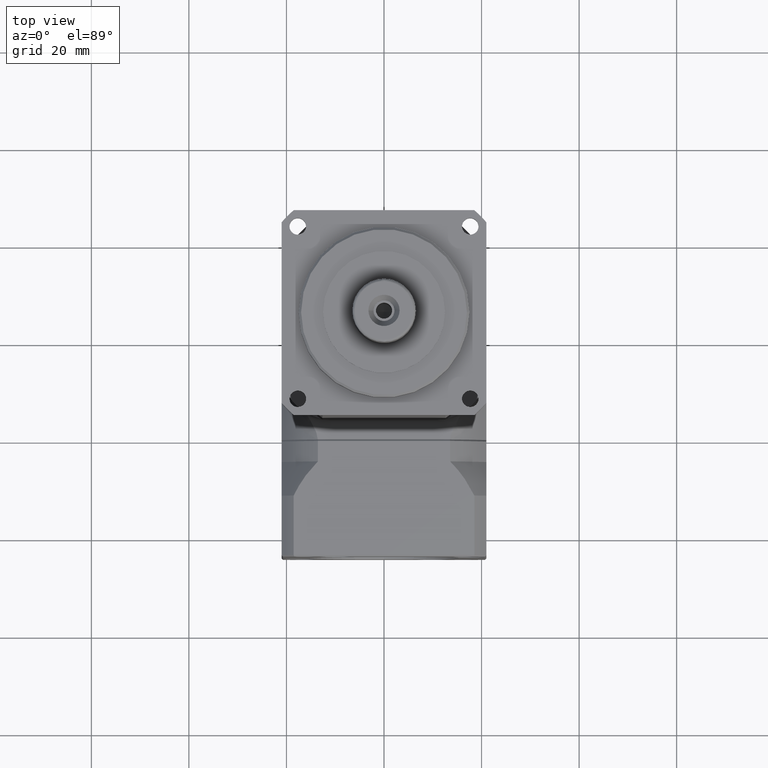
[diagram: clean part render]
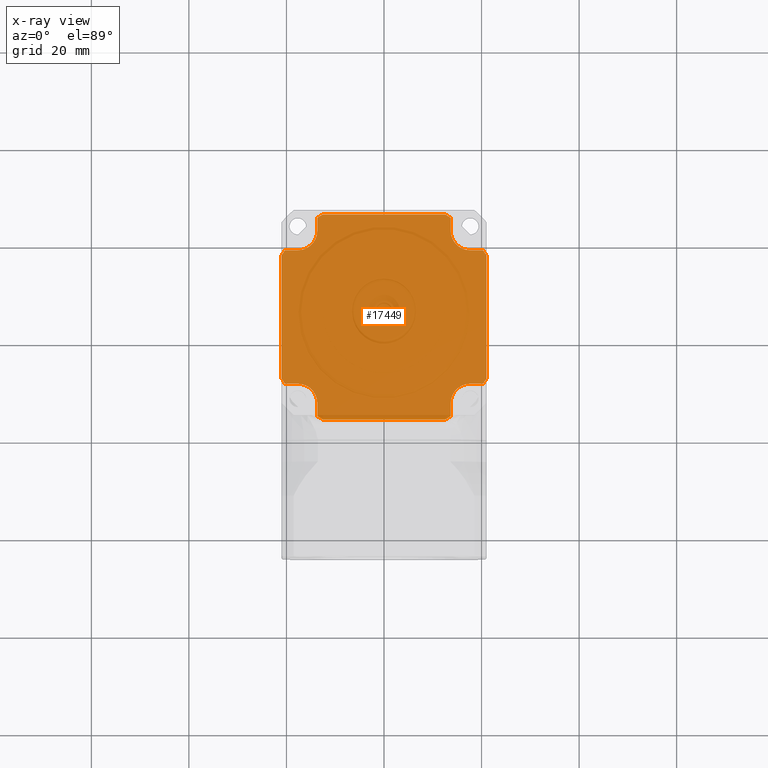
[diagram: x-ray — body ghosted, one internal face saturated and labeled with its STEP entity id]
A machine part, top view, then the same camera in x-ray: the body is ghosted and one INTERNAL B-rep face — a face not visible from any outside direction — is saturated and labeled: STEP entity #17449.
In plain terms, the highlighted planar face has unit normal (0, 0, 1).
Its self-contained STEP definition (entity closure, byte-faithful):
#29 = EDGE_CURVE ( 'NONE', #11926, #10925, #13843, .T. ) ;
#72 = DIRECTION ( 'NONE',  ( -1.000000000000000000, -0.0000000000000000000, 0.0000000000000000000 ) ) ;
#100 = LINE ( 'NONE', #5847, #5934 ) ;
#269 = ORIENTED_EDGE ( 'NONE', *, *, #16492, .F. ) ;
#301 = EDGE_CURVE ( 'NONE', #3628, #2032, #17816, .T. ) ;
#525 = ORIENTED_EDGE ( 'NONE', *, *, #17121, .F. ) ;
#535 = CARTESIAN_POINT ( 'NONE',  ( 3653.603875950607700, 1416.338132475112200, 0.0000000000000000000 ) ) ;
#545 = EDGE_CURVE ( 'NONE', #15669, #10953, #6582, .T. ) ;
#655 = DIRECTION ( 'NONE',  ( -1.000000000000000000, -0.0000000000000000000, 0.0000000000000000000 ) ) ;
#688 = EDGE_CURVE ( 'NONE', #11619, #18233, #13596, .T. ) ;
#759 = CARTESIAN_POINT ( 'NONE',  ( 3653.603875950607700, 1416.338132475112200, 0.0000000000000000000 ) ) ;
#845 = EDGE_CURVE ( 'NONE', #2032, #15438, #5630, .T. ) ;
#924 = DIRECTION ( 'NONE',  ( -1.000000000000000000, 0.0000000000000000000, 0.0000000000000000000 ) ) ;
#955 = EDGE_CURVE ( 'NONE', #5896, #11633, #7251, .T. ) ;
#964 = ORIENTED_EDGE ( 'NONE', *, *, #9137, .F. ) ;
#994 = VERTEX_POINT ( 'NONE', #3820 ) ;
#1012 = ORIENTED_EDGE ( 'NONE', *, *, #955, .F. ) ;
#1124 = VERTEX_POINT ( 'NONE', #11743 ) ;
#1241 = CARTESIAN_POINT ( 'NONE',  ( 3667.281545278764500, 1416.338132475112200, 0.0000000000000000000 ) ) ;
#1451 = DIRECTION ( 'NONE',  ( 1.000000000000000000, 0.0000000000000000000, -0.0000000000000000000 ) ) ;
#1654 = VECTOR ( 'NONE', #3000, 1000.000000000000000 ) ;
#1740 = DIRECTION ( 'NONE',  ( -1.000000000000000000, 7.703588084212449800E-013, 0.0000000000000000000 ) ) ;
#1839 = CARTESIAN_POINT ( 'NONE',  ( 3633.277258396824000, 1402.660463054807500, 0.0000000000000000000 ) ) ;
#1892 = AXIS2_PLACEMENT_3D ( 'NONE', #759, #11227, #2238 ) ;
#1955 = EDGE_LOOP ( 'NONE', ( #16717, #19314, #5750, #13756, #9875, #4880, #9709, #269, #16561, #14162, #13967, #10852, #8988, #15014, #1012, #17714, #18382, #964, #10274, #12080, #16409, #525, #9691, #15710 ) ) ;
#1991 = VERTEX_POINT ( 'NONE', #16380 ) ;
#2032 = VERTEX_POINT ( 'NONE', #4331 ) ;
#2138 = LINE ( 'NONE', #4818, #11074 ) ;
#2238 = DIRECTION ( 'NONE',  ( -1.000000000000000000, -1.268826308684776500E-013, 0.0000000000000000000 ) ) ;
#2255 = CARTESIAN_POINT ( 'NONE',  ( 3632.603875364589800, 1403.718703116533600, 0.0000000000000000000 ) ) ;
#2363 = FACE_OUTER_BOUND ( 'NONE', #1955, .T. ) ;
#2431 = VERTEX_POINT ( 'NONE', #6875 ) ;
#2825 = LINE ( 'NONE', #3061, #1654 ) ;
#2937 = VERTEX_POINT ( 'NONE', #2255 ) ;
#2972 = AXIS2_PLACEMENT_3D ( 'NONE', #13386, #13454, #14826 ) ;
#3000 = DIRECTION ( 'NONE',  ( -1.000000000000000000, -0.0000000000000000000, 0.0000000000000000000 ) ) ;
#3041 = DIRECTION ( 'NONE',  ( 1.000000000000000000, 0.0000000000000000000, -0.0000000000000000000 ) ) ;
#3061 = CARTESIAN_POINT ( 'NONE',  ( 3653.603875950607700, 1437.338132993318100, 0.0000000000000000000 ) ) ;
#3063 = AXIS2_PLACEMENT_3D ( 'NONE', #15720, #9840, #3724 ) ;
#3115 = CARTESIAN_POINT ( 'NONE',  ( 3653.603875950607700, 1430.015802524130800, 0.0000000000000000000 ) ) ;
#3202 = VERTEX_POINT ( 'NONE', #6315 ) ;
#3451 = EDGE_CURVE ( 'NONE', #10953, #16059, #18216, .T. ) ;
#3628 = VERTEX_POINT ( 'NONE', #17874 ) ;
#3724 = DIRECTION ( 'NONE',  ( -1.000000000000000000, -4.169000777058308300E-013, 0.0000000000000000000 ) ) ;
#3772 = CARTESIAN_POINT ( 'NONE',  ( 3635.926205771974300, 1434.015802563878200, 0.0000000000000000000 ) ) ;
#3820 = CARTESIAN_POINT ( 'NONE',  ( 3667.281545270607700, 1396.011515617056400, 0.0000000000000000000 ) ) ;
#3857 = EDGE_CURVE ( 'NONE', #7575, #11619, #18651, .T. ) ;
#4319 = CIRCLE ( 'NONE', #1892, 24.50000009987762800 ) ;
#4331 = CARTESIAN_POINT ( 'NONE',  ( 3635.926205780749100, 1430.015802522639900, 0.0000000000000000000 ) ) ;
#4341 = CARTESIAN_POINT ( 'NONE',  ( 3653.603875950607700, 1416.338132475112200, 0.0000000000000000000 ) ) ;
#4413 = DIRECTION ( 'NONE',  ( 0.0000000000000000000, 0.0000000000000000000, 1.000000000000000000 ) ) ;
#4453 = CARTESIAN_POINT ( 'NONE',  ( 3639.926205809276800, 1396.011515646083100, 0.0000000000000000000 ) ) ;
#4471 = AXIS2_PLACEMENT_3D ( 'NONE', #8556, #5725, #8424 ) ;
#4631 = CARTESIAN_POINT ( 'NONE',  ( 3653.603875950607700, 1416.338132475112200, 0.0000000000000000000 ) ) ;
#4634 = CARTESIAN_POINT ( 'NONE',  ( 3671.281545320003300, 1434.015802565369500, 0.0000000000000000000 ) ) ;
#4690 = EDGE_CURVE ( 'NONE', #994, #14304, #6231, .T. ) ;
#4818 = CARTESIAN_POINT ( 'NONE',  ( 3653.603875950607700, 1395.338132565405900, 0.0000000000000000000 ) ) ;
#4880 = ORIENTED_EDGE ( 'NONE', *, *, #3451, .F. ) ;
#5291 = CARTESIAN_POINT ( 'NONE',  ( 3639.926205813211700, 1416.338132475112200, 0.0000000000000000000 ) ) ;
#5530 = CARTESIAN_POINT ( 'NONE',  ( 3635.926205768038500, 1398.660463013569600, 0.0000000000000000000 ) ) ;
#5580 = CIRCLE ( 'NONE', #16003, 24.50000076735126000 ) ;
#5630 = LINE ( 'NONE', #12363, #12656 ) ;
#5725 = DIRECTION ( 'NONE',  ( -0.0000000000000000000, -0.0000000000000000000, -1.000000000000000000 ) ) ;
#5750 = ORIENTED_EDGE ( 'NONE', *, *, #688, .F. ) ;
#5839 = CARTESIAN_POINT ( 'NONE',  ( 3674.603875742843700, 1428.957562478882700, 0.0000000000000000000 ) ) ;
#5847 = CARTESIAN_POINT ( 'NONE',  ( 3653.603875950607700, 1402.660463054807500, 0.0000000000000000000 ) ) ;
#5896 = VERTEX_POINT ( 'NONE', #8761 ) ;
#5934 = VECTOR ( 'NONE', #1451, 1000.000000000000000 ) ;
#5968 = EDGE_CURVE ( 'NONE', #2937, #14651, #16885, .T. ) ;
#6066 = EDGE_CURVE ( 'NONE', #15438, #2431, #14518, .T. ) ;
#6099 = CARTESIAN_POINT ( 'NONE',  ( 3639.926205813211700, 1436.664749931364200, 0.0000000000000000000 ) ) ;
#6194 = AXIS2_PLACEMENT_3D ( 'NONE', #12111, #7711, #1740 ) ;
#6231 = LINE ( 'NONE', #9005, #15831 ) ;
#6315 = CARTESIAN_POINT ( 'NONE',  ( 3666.223305211858100, 1437.338132993318100, 0.0000000000000000000 ) ) ;
#6582 = CIRCLE ( 'NONE', #2972, 24.49999978211980800 ) ;
#6633 = CARTESIAN_POINT ( 'NONE',  ( 3666.223305205286100, 1395.338132565405900, 0.0000000000000000000 ) ) ;
#6757 = CARTESIAN_POINT ( 'NONE',  ( 3667.281545278764500, 1434.015802563484600, 0.0000000000000000000 ) ) ;
#6875 = CARTESIAN_POINT ( 'NONE',  ( 3632.603875364589800, 1428.957562507174300, 0.0000000000000000000 ) ) ;
#7178 = VECTOR ( 'NONE', #14280, 1000.000000000000000 ) ;
#7203 = EDGE_CURVE ( 'NONE', #11633, #11926, #11454, .T. ) ;
#7208 = VECTOR ( 'NONE', #9426, 1000.000000000000000 ) ;
#7251 = CIRCLE ( 'NONE', #10387, 4.000000041238127600 ) ;
#7393 = VECTOR ( 'NONE', #8617, 1000.000000000000000 ) ;
#7563 = EDGE_CURVE ( 'NONE', #9448, #11979, #5580, .T. ) ;
#7575 = VERTEX_POINT ( 'NONE', #15080 ) ;
#7711 = DIRECTION ( 'NONE',  ( 0.0000000000000000000, 0.0000000000000000000, 1.000000000000000000 ) ) ;
#7732 = DIRECTION ( 'NONE',  ( 0.0000000000000000000, 0.0000000000000000000, 1.000000000000000000 ) ) ;
#7748 = CARTESIAN_POINT ( 'NONE',  ( 3674.603875742843700, 1403.718703088253100, 0.0000000000000000000 ) ) ;
#7778 = LINE ( 'NONE', #5291, #11728 ) ;
#7893 = EDGE_CURVE ( 'NONE', #18233, #1124, #9340, .T. ) ;
#8010 = AXIS2_PLACEMENT_3D ( 'NONE', #9126, #7732, #9193 ) ;
#8414 = CARTESIAN_POINT ( 'NONE',  ( 3639.926205809276800, 1398.660463022344400, 0.0000000000000000000 ) ) ;
#8424 = DIRECTION ( 'NONE',  ( -1.000000000000000000, 0.0000000000000000000, 0.0000000000000000000 ) ) ;
#8556 = CARTESIAN_POINT ( 'NONE',  ( 3671.281545311846000, 1398.660462985663600, 0.0000000000000000000 ) ) ;
#8617 = DIRECTION ( 'NONE',  ( 0.0000000000000000000, -1.000000000000000000, -0.0000000000000000000 ) ) ;
#8748 = EDGE_CURVE ( 'NONE', #14304, #1991, #10006, .T. ) ;
#8761 = CARTESIAN_POINT ( 'NONE',  ( 3635.926205776813700, 1402.660463054807500, 0.0000000000000000000 ) ) ;
#8806 = CARTESIAN_POINT ( 'NONE',  ( 3632.603875364589800, 1416.338132475112200, 0.0000000000000000000 ) ) ;
#8988 = ORIENTED_EDGE ( 'NONE', *, *, #29, .F. ) ;
#9005 = CARTESIAN_POINT ( 'NONE',  ( 3667.281545270607700, 1416.338132475112200, 0.0000000000000000000 ) ) ;
#9097 = CARTESIAN_POINT ( 'NONE',  ( 3633.277258400758500, 1430.015802522639900, 0.0000000000000000000 ) ) ;
#9103 = DIRECTION ( 'NONE',  ( 0.0000000000000000000, 0.0000000000000000000, 1.000000000000000000 ) ) ;
#9126 = CARTESIAN_POINT ( 'NONE',  ( 3653.603875950607700, 1416.338132475112200, 0.0000000000000000000 ) ) ;
#9137 = EDGE_CURVE ( 'NONE', #2431, #2937, #13735, .T. ) ;
#9193 = DIRECTION ( 'NONE',  ( -1.000000000000000000, 3.625217989330414800E-014, 0.0000000000000000000 ) ) ;
#9212 = DIRECTION ( 'NONE',  ( -0.0000000000000000000, 1.000000000000000000, 0.0000000000000000000 ) ) ;
#9340 = LINE ( 'NONE', #1241, #11669 ) ;
#9426 = DIRECTION ( 'NONE',  ( 0.0000000000000000000, -1.000000000000000000, -0.0000000000000000000 ) ) ;
#9448 = VERTEX_POINT ( 'NONE', #10972 ) ;
#9553 = CARTESIAN_POINT ( 'NONE',  ( 3673.930492683092800, 1402.660463026901700, 0.0000000000000000000 ) ) ;
#9569 = DIRECTION ( 'NONE',  ( -1.000000000000000000, 0.0000000000000000000, 0.0000000000000000000 ) ) ;
#9691 = ORIENTED_EDGE ( 'NONE', *, *, #7563, .F. ) ;
#9709 = ORIENTED_EDGE ( 'NONE', *, *, #545, .F. ) ;
#9747 = CARTESIAN_POINT ( 'NONE',  ( 3671.281545303876100, 1430.015802524130800, 0.0000000000000000000 ) ) ;
#9762 = DIRECTION ( 'NONE',  ( 0.0000000000000000000, -1.000000000000000000, -0.0000000000000000000 ) ) ;
#9840 = DIRECTION ( 'NONE',  ( 0.0000000000000000000, 0.0000000000000000000, 1.000000000000000000 ) ) ;
#9875 = ORIENTED_EDGE ( 'NONE', *, *, #14133, .F. ) ;
#9928 = DIRECTION ( 'NONE',  ( -0.0000000000000000000, -0.0000000000000000000, -1.000000000000000000 ) ) ;
#10006 = CIRCLE ( 'NONE', #4471, 4.000000041238127600 ) ;
#10081 = DIRECTION ( 'NONE',  ( 1.000000000000000000, 0.0000000000000000000, -0.0000000000000000000 ) ) ;
#10274 = ORIENTED_EDGE ( 'NONE', *, *, #6066, .F. ) ;
#10387 = AXIS2_PLACEMENT_3D ( 'NONE', #5530, #9928, #12790 ) ;
#10461 = PLANE ( 'NONE',  #15621 ) ;
#10852 = ORIENTED_EDGE ( 'NONE', *, *, #12979, .F. ) ;
#10916 = EDGE_CURVE ( 'NONE', #14651, #5896, #100, .T. ) ;
#10925 = VERTEX_POINT ( 'NONE', #17766 ) ;
#10953 = VERTEX_POINT ( 'NONE', #7748 ) ;
#10972 = CARTESIAN_POINT ( 'NONE',  ( 3640.984445859055500, 1437.338132993318100, 0.0000000000000000000 ) ) ;
#11074 = VECTOR ( 'NONE', #12161, 1000.000000000000000 ) ;
#11227 = DIRECTION ( 'NONE',  ( 0.0000000000000000000, 0.0000000000000000000, 1.000000000000000000 ) ) ;
#11454 = LINE ( 'NONE', #16880, #7208 ) ;
#11503 = LINE ( 'NONE', #17540, #14074 ) ;
#11619 = VERTEX_POINT ( 'NONE', #9747 ) ;
#11633 = VERTEX_POINT ( 'NONE', #8414 ) ;
#11668 = DIRECTION ( 'NONE',  ( -0.0000000000000000000, 1.000000000000000000, 0.0000000000000000000 ) ) ;
#11669 = VECTOR ( 'NONE', #11668, 1000.000000000000000 ) ;
#11728 = VECTOR ( 'NONE', #9762, 1000.000000000000000 ) ;
#11743 = CARTESIAN_POINT ( 'NONE',  ( 3667.281545278764500, 1436.664749960418500, 0.0000000000000000000 ) ) ;
#11926 = VERTEX_POINT ( 'NONE', #4453 ) ;
#11979 = VERTEX_POINT ( 'NONE', #6099 ) ;
#12026 = DIRECTION ( 'NONE',  ( 0.0000000000000000000, 0.0000000000000000000, 1.000000000000000000 ) ) ;
#12080 = ORIENTED_EDGE ( 'NONE', *, *, #845, .F. ) ;
#12111 = CARTESIAN_POINT ( 'NONE',  ( 3653.603875950607700, 1416.338132475112200, 0.0000000000000000000 ) ) ;
#12146 = AXIS2_PLACEMENT_3D ( 'NONE', #535, #17017, #9569 ) ;
#12161 = DIRECTION ( 'NONE',  ( 1.000000000000000000, 0.0000000000000000000, -0.0000000000000000000 ) ) ;
#12218 = VERTEX_POINT ( 'NONE', #6633 ) ;
#12304 = CARTESIAN_POINT ( 'NONE',  ( 3653.603875950607700, 1416.338132475112200, 0.0000000000000000000 ) ) ;
#12363 = CARTESIAN_POINT ( 'NONE',  ( 3653.603875950607700, 1430.015802522639900, 0.0000000000000000000 ) ) ;
#12631 = DIRECTION ( 'NONE',  ( -0.0000000000000000000, -0.0000000000000000000, -1.000000000000000000 ) ) ;
#12656 = VECTOR ( 'NONE', #655, 1000.000000000000000 ) ;
#12675 = CIRCLE ( 'NONE', #3063, 24.49999981472439400 ) ;
#12790 = DIRECTION ( 'NONE',  ( -1.000000000000000000, 0.0000000000000000000, 0.0000000000000000000 ) ) ;
#12979 = EDGE_CURVE ( 'NONE', #10925, #12218, #2138, .T. ) ;
#13094 = CARTESIAN_POINT ( 'NONE',  ( 3667.281545270607700, 1398.660462985663600, 0.0000000000000000000 ) ) ;
#13386 = CARTESIAN_POINT ( 'NONE',  ( 3653.603875950607700, 1416.338132475112200, 0.0000000000000000000 ) ) ;
#13454 = DIRECTION ( 'NONE',  ( 0.0000000000000000000, 0.0000000000000000000, 1.000000000000000000 ) ) ;
#13512 = DIRECTION ( 'NONE',  ( -1.000000000000000000, -5.437826889073284400E-014, 0.0000000000000000000 ) ) ;
#13596 = CIRCLE ( 'NONE', #15017, 4.000000041239015800 ) ;
#13735 = LINE ( 'NONE', #8806, #7393 ) ;
#13756 = ORIENTED_EDGE ( 'NONE', *, *, #3857, .F. ) ;
#13843 = CIRCLE ( 'NONE', #12146, 24.50000024916754200 ) ;
#13850 = DIRECTION ( 'NONE',  ( -0.0000000000000000000, -0.0000000000000000000, -1.000000000000000000 ) ) ;
#13967 = ORIENTED_EDGE ( 'NONE', *, *, #18153, .F. ) ;
#14074 = VECTOR ( 'NONE', #10081, 1000.000000000000000 ) ;
#14133 = EDGE_CURVE ( 'NONE', #16059, #7575, #4319, .T. ) ;
#14162 = ORIENTED_EDGE ( 'NONE', *, *, #4690, .F. ) ;
#14280 = DIRECTION ( 'NONE',  ( -0.0000000000000000000, 1.000000000000000000, 0.0000000000000000000 ) ) ;
#14304 = VERTEX_POINT ( 'NONE', #13094 ) ;
#14518 = CIRCLE ( 'NONE', #6194, 24.50000079483372100 ) ;
#14651 = VERTEX_POINT ( 'NONE', #1839 ) ;
#14826 = DIRECTION ( 'NONE',  ( -1.000000000000000000, -9.063045179579156100E-014, 0.0000000000000000000 ) ) ;
#15014 = ORIENTED_EDGE ( 'NONE', *, *, #7203, .F. ) ;
#15017 = AXIS2_PLACEMENT_3D ( 'NONE', #4634, #13850, #15096 ) ;
#15032 = DIRECTION ( 'NONE',  ( -1.000000000000000000, 8.156740439952084000E-014, 0.0000000000000000000 ) ) ;
#15080 = CARTESIAN_POINT ( 'NONE',  ( 3673.930492661811100, 1430.015802524130800, 0.0000000000000000000 ) ) ;
#15096 = DIRECTION ( 'NONE',  ( -1.000000000000000000, 0.0000000000000000000, 0.0000000000000000000 ) ) ;
#15438 = VERTEX_POINT ( 'NONE', #9097 ) ;
#15621 = AXIS2_PLACEMENT_3D ( 'NONE', #4631, #12026, #3041 ) ;
#15669 = VERTEX_POINT ( 'NONE', #9553 ) ;
#15710 = ORIENTED_EDGE ( 'NONE', *, *, #16661, .F. ) ;
#15720 = CARTESIAN_POINT ( 'NONE',  ( 3653.603875950607700, 1416.338132475112200, 0.0000000000000000000 ) ) ;
#15799 = CARTESIAN_POINT ( 'NONE',  ( 3674.603875742843700, 1416.338132475112200, 0.0000000000000000000 ) ) ;
#15831 = VECTOR ( 'NONE', #9212, 1000.000000000000000 ) ;
#15971 = AXIS2_PLACEMENT_3D ( 'NONE', #12304, #9103, #15032 ) ;
#16003 = AXIS2_PLACEMENT_3D ( 'NONE', #4341, #4413, #13512 ) ;
#16059 = VERTEX_POINT ( 'NONE', #5839 ) ;
#16380 = CARTESIAN_POINT ( 'NONE',  ( 3671.281545303078500, 1402.660463026901700, 0.0000000000000000000 ) ) ;
#16409 = ORIENTED_EDGE ( 'NONE', *, *, #301, .F. ) ;
#16492 = EDGE_CURVE ( 'NONE', #1991, #15669, #11503, .T. ) ;
#16561 = ORIENTED_EDGE ( 'NONE', *, *, #8748, .F. ) ;
#16661 = EDGE_CURVE ( 'NONE', #3202, #9448, #2825, .T. ) ;
#16717 = ORIENTED_EDGE ( 'NONE', *, *, #19231, .F. ) ;
#16880 = CARTESIAN_POINT ( 'NONE',  ( 3639.926205809276800, 1416.338132475112200, 0.0000000000000000000 ) ) ;
#16885 = CIRCLE ( 'NONE', #15971, 24.50000044793654300 ) ;
#17017 = DIRECTION ( 'NONE',  ( 0.0000000000000000000, 0.0000000000000000000, 1.000000000000000000 ) ) ;
#17121 = EDGE_CURVE ( 'NONE', #11979, #3628, #7778, .T. ) ;
#17449 = ADVANCED_FACE ( 'NONE', ( #2363 ), #10461, .F. ) ;
#17493 = VECTOR ( 'NONE', #72, 1000.000000000000000 ) ;
#17540 = CARTESIAN_POINT ( 'NONE',  ( 3653.603875950607700, 1402.660463026901700, 0.0000000000000000000 ) ) ;
#17714 = ORIENTED_EDGE ( 'NONE', *, *, #10916, .F. ) ;
#17766 = CARTESIAN_POINT ( 'NONE',  ( 3640.984445852478500, 1395.338132565405900, 0.0000000000000000000 ) ) ;
#17816 = CIRCLE ( 'NONE', #19027, 4.000000041238571700 ) ;
#17874 = CARTESIAN_POINT ( 'NONE',  ( 3639.926205813212200, 1434.015802555102900, 0.0000000000000000000 ) ) ;
#18153 = EDGE_CURVE ( 'NONE', #12218, #994, #12675, .T. ) ;
#18216 = LINE ( 'NONE', #15799, #7178 ) ;
#18233 = VERTEX_POINT ( 'NONE', #6757 ) ;
#18382 = ORIENTED_EDGE ( 'NONE', *, *, #5968, .F. ) ;
#18651 = LINE ( 'NONE', #3115, #17493 ) ;
#19027 = AXIS2_PLACEMENT_3D ( 'NONE', #3772, #12631, #924 ) ;
#19184 = CIRCLE ( 'NONE', #8010, 24.50000033968091600 ) ;
#19231 = EDGE_CURVE ( 'NONE', #1124, #3202, #19184, .T. ) ;
#19314 = ORIENTED_EDGE ( 'NONE', *, *, #7893, .F. ) ;